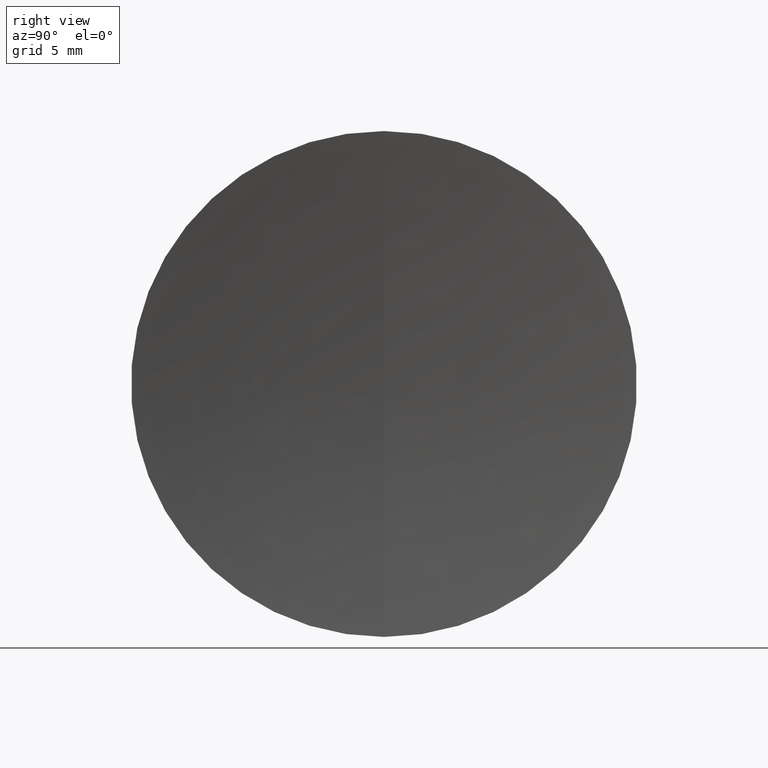
[diagram: clean part render]
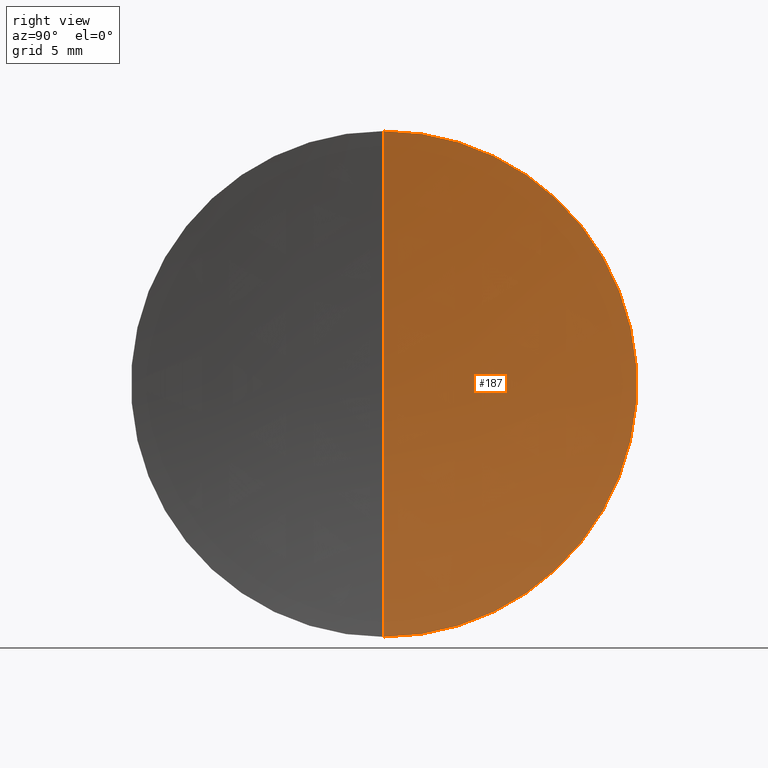
[diagram: same view with one face highlighted and labeled with its STEP entity id]
A machine part, right view. The second image highlights one B-rep face of the part: STEP entity #187.
In plain terms, the highlighted spherical surface has radius 93.11 mm.
Its self-contained STEP definition (entity closure, byte-faithful):
#16 = EDGE_CURVE ( 'NONE', #279, #267, #51, .T. ) ;
#33 = DIRECTION ( 'NONE',  ( 0.0000000000000000000, -1.000000000000000000, -1.224646799147353200E-016 ) ) ;
#45 = EDGE_CURVE ( 'NONE', #230, #267, #308, .T. ) ;
#51 = CIRCLE ( 'NONE', #100, 93.10999999999999900 ) ;
#64 = CARTESIAN_POINT ( 'NONE',  ( 63.77435168679243600, 0.0000000000000000000, 0.0000000000000000000 ) ) ;
#78 = AXIS2_PLACEMENT_3D ( 'NONE', #329, #33, #177 ) ;
#82 = ORIENTED_EDGE ( 'NONE', *, *, #45, .T. ) ;
#86 = EDGE_CURVE ( 'NONE', #230, #279, #185, .T. ) ;
#100 = AXIS2_PLACEMENT_3D ( 'NONE', #283, #170, #188 ) ;
#108 = DIRECTION ( 'NONE',  ( 0.0000000000000000000, 0.0000000000000000000, -1.000000000000000000 ) ) ;
#114 = AXIS2_PLACEMENT_3D ( 'NONE', #167, #124, #108 ) ;
#124 = DIRECTION ( 'NONE',  ( -0.0000000000000000000, -1.000000000000000000, -0.0000000000000000000 ) ) ;
#129 = CARTESIAN_POINT ( 'NONE',  ( 63.77435168679243600, -1.555301434917144300E-015, 12.70000000000004700 ) ) ;
#132 = ORIENTED_EDGE ( 'NONE', *, *, #16, .F. ) ;
#142 = DIRECTION ( 'NONE',  ( -1.000000000000000000, -0.0000000000000000000, -0.0000000000000000000 ) ) ;
#167 = CARTESIAN_POINT ( 'NONE',  ( 156.0141592538076600, 0.0000000000000000000, 0.0000000000000000000 ) ) ;
#170 = DIRECTION ( 'NONE',  ( 0.0000000000000000000, 1.000000000000000000, -0.0000000000000000000 ) ) ;
#177 = DIRECTION ( 'NONE',  ( 0.0000000000000000000, 1.224646799147353200E-016, -1.000000000000000000 ) ) ;
#185 = CIRCLE ( 'NONE', #318, 12.70000000000004200 ) ;
#187 = ADVANCED_FACE ( 'NONE', ( #264 ), #236, .F. ) ;
#188 = DIRECTION ( 'NONE',  ( 0.0000000000000000000, 0.0000000000000000000, 1.000000000000000000 ) ) ;
#189 = DIRECTION ( 'NONE',  ( 0.0000000000000000000, 0.0000000000000000000, 1.000000000000000000 ) ) ;
#210 = CARTESIAN_POINT ( 'NONE',  ( 63.77435168679243600, 0.0000000000000000000, -12.70000000000004700 ) ) ;
#230 = VERTEX_POINT ( 'NONE', #129 ) ;
#236 = SPHERICAL_SURFACE ( 'NONE', #114, 93.10999999999999900 ) ;
#240 = CARTESIAN_POINT ( 'NONE',  ( 62.90415925380765600, 0.0000000000000000000, -5.701343173430502700E-015 ) ) ;
#264 = FACE_OUTER_BOUND ( 'NONE', #332, .T. ) ;
#267 = VERTEX_POINT ( 'NONE', #240 ) ;
#279 = VERTEX_POINT ( 'NONE', #210 ) ;
#283 = CARTESIAN_POINT ( 'NONE',  ( 156.0141592538076600, 0.0000000000000000000, 0.0000000000000000000 ) ) ;
#307 = ORIENTED_EDGE ( 'NONE', *, *, #86, .F. ) ;
#308 = CIRCLE ( 'NONE', #78, 93.10999999999999900 ) ;
#318 = AXIS2_PLACEMENT_3D ( 'NONE', #64, #142, #189 ) ;
#329 = CARTESIAN_POINT ( 'NONE',  ( 156.0141592538076600, 0.0000000000000000000, 0.0000000000000000000 ) ) ;
#332 = EDGE_LOOP ( 'NONE', ( #307, #82, #132 ) ) ;